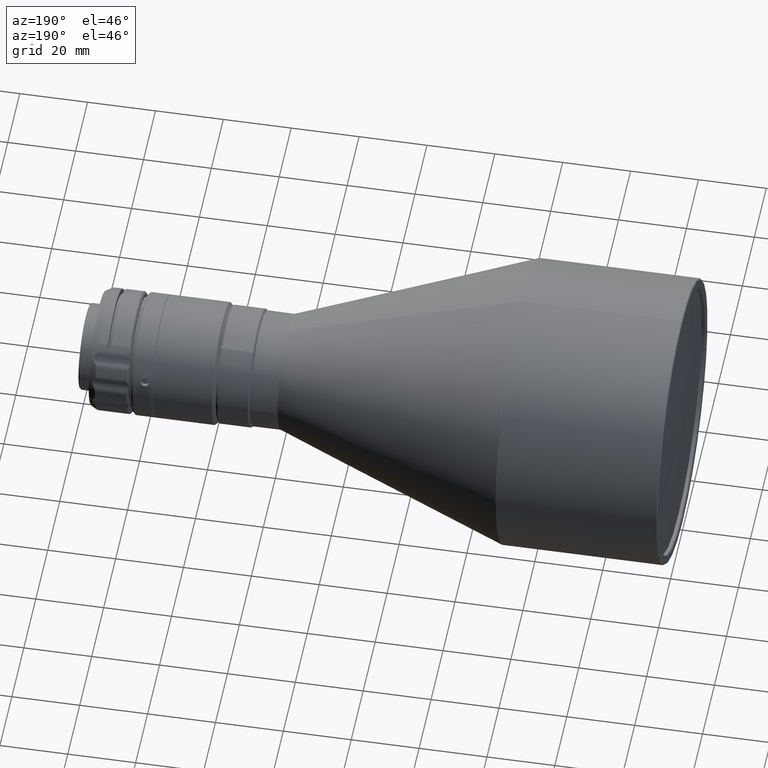
[diagram: clean part render]
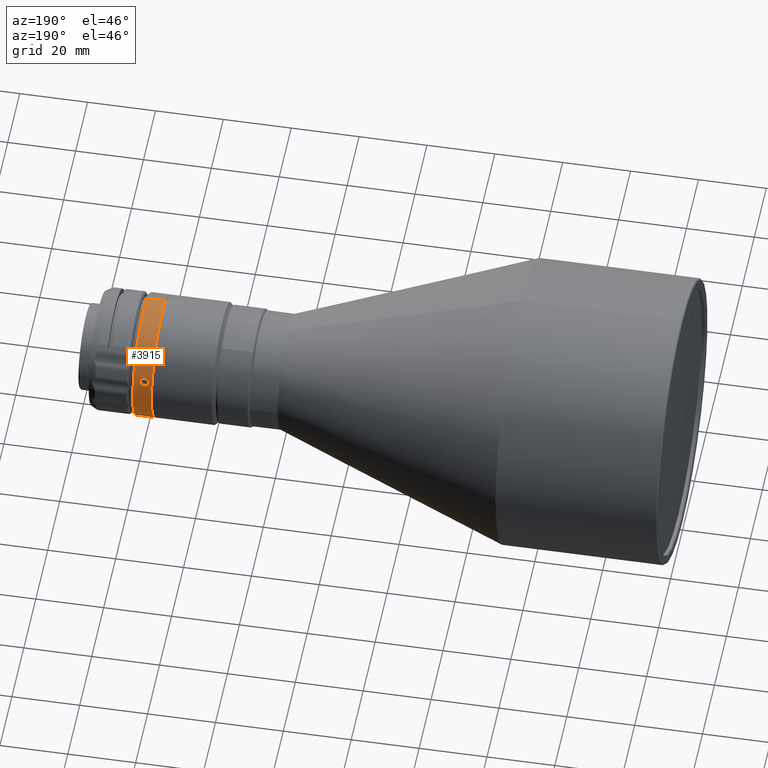
[diagram: same view with one face highlighted and labeled with its STEP entity id]
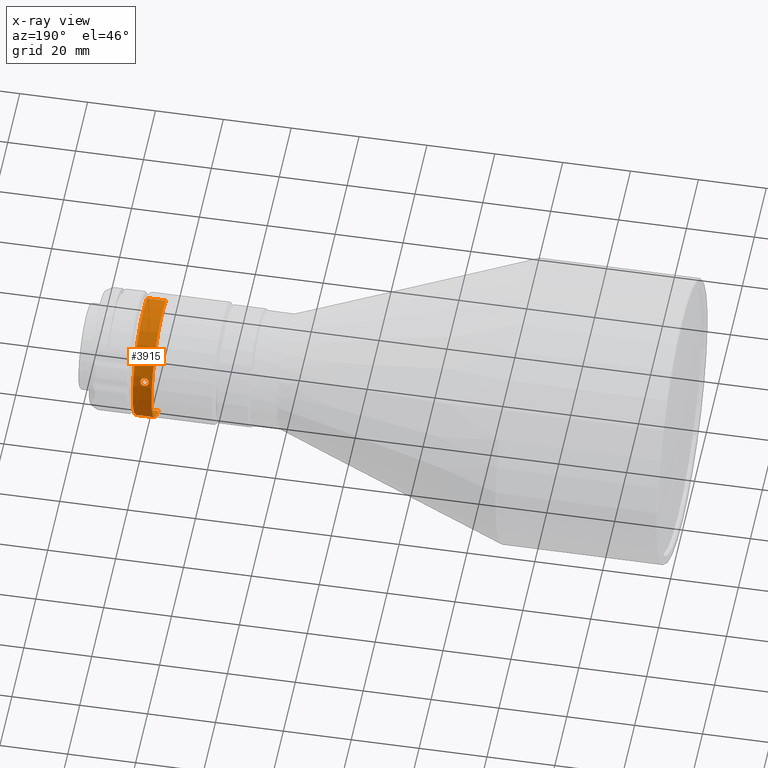
[diagram: x-ray of the same camera — body ghosted, the highlighted face saturated]
A machine part, auxiliary view. The second image highlights one B-rep face of the part: STEP entity #3915.
The next image is the same camera in x-ray: the body ghosted, the highlighted face saturated — about 0% of this face is hidden behind the body in this view.
In plain terms, the highlighted cylindrical surface (partial cylindrical patch) has radius 18 mm, axis along (1, -0, 0).
Its self-contained STEP definition (entity closure, byte-faithful):
#33 = CARTESIAN_POINT ( 'NONE',  ( 153.3200000000000500, 0.0000000000000000000, 0.0000000000000000000 ) ) ;
#83 = EDGE_CURVE ( 'NONE', #1012, #4219, #247, .T. ) ;
#118 = AXIS2_PLACEMENT_3D ( 'NONE', #2784, #1117, #1835 ) ;
#149 = CARTESIAN_POINT ( 'NONE',  ( 156.6126764130156300, 17.19872891739681400, 5.312875864783946700 ) ) ;
#166 = CARTESIAN_POINT ( 'NONE',  ( 156.7701125228576300, 17.05531151229267200, 5.756990789659949000 ) ) ;
#179 = LINE ( 'NONE', #4344, #1465 ) ;
#209 = CARTESIAN_POINT ( 'NONE',  ( 154.7520794296895000, 16.64779505477713800, 6.845771254206045600 ) ) ;
#236 = CARTESIAN_POINT ( 'NONE',  ( 154.3029849577538400, 17.10764951396787500, 5.599192571320239500 ) ) ;
#247 = B_SPLINE_CURVE_WITH_KNOTS ( 'NONE', 3,
 ( #3617, #2587, #1964, #3961, #2292, #1265, #2640, #236, #1202, #2625, #3303, #2962, #4000, #209, #535, #1565, #1916, #1932 ),
 .UNSPECIFIED., .F., .F.,
 ( 4, 2, 2, 2, 2, 2, 2, 2, 4 ),
 ( 1.011074022885927400E-013, 0.0004885516651167364700, 0.0009771033301323656700, 0.001465654995147994700, 0.001954206660163623900, 0.002442758325179253100, 0.002931309990194881800, 0.003419861655210511000, 0.003908413320226140200 ),
 .UNSPECIFIED. ) ;
#312 = ORIENTED_EDGE ( 'NONE', *, *, #1543, .T. ) ;
#376 = LINE ( 'NONE', #1563, #1065 ) ;
#403 = EDGE_LOOP ( 'NONE', ( #623, #1054 ) ) ;
#404 = DIRECTION ( 'NONE',  ( 1.000000000000000000, -0.0000000000000000000, 0.0000000000000000000 ) ) ;
#432 = CIRCLE ( 'NONE', #118, 18.00000000000000000 ) ;
#465 = DIRECTION ( 'NONE',  ( 0.0000000000000000000, -0.3283447758131912100, 0.9445579432709172400 ) ) ;
#487 = CARTESIAN_POINT ( 'NONE',  ( 156.5210970272663400, 17.23865710162804600, 5.180961839587793900 ) ) ;
#499 = CARTESIAN_POINT ( 'NONE',  ( 155.6851993349185400, 17.37142796394070700, 4.715240237105522400 ) ) ;
#514 = CARTESIAN_POINT ( 'NONE',  ( 155.8472988360740600, 16.56346420944447900, 7.046673383073519800 ) ) ;
#535 = CARTESIAN_POINT ( 'NONE',  ( 154.8895737253813000, 16.61237247428229600, 6.930587481705518200 ) ) ;
#546 = CARTESIAN_POINT ( 'NONE',  ( 156.7698868788436100, 16.94820650319242700, 6.065054827346450800 ) ) ;
#623 = ORIENTED_EDGE ( 'NONE', *, *, #3170, .F. ) ;
#759 = EDGE_CURVE ( 'NONE', #4055, #1776, #179, .T. ) ;
#789 = ORIENTED_EDGE ( 'NONE', *, *, #759, .F. ) ;
#885 = ORIENTED_EDGE ( 'NONE', *, *, #1281, .F. ) ;
#1012 = VERTEX_POINT ( 'NONE', #1335 ) ;
#1054 = ORIENTED_EDGE ( 'NONE', *, *, #83, .F. ) ;
#1065 = VECTOR ( 'NONE', #1647, 1000.000000000000000 ) ;
#1117 = DIRECTION ( 'NONE',  ( 1.000000000000000000, -0.0000000000000000000, 0.0000000000000000000 ) ) ;
#1158 = ORIENTED_EDGE ( 'NONE', *, *, #3246, .T. ) ;
#1170 = CYLINDRICAL_SURFACE ( 'NONE', #2127, 18.00000000000000000 ) ;
#1202 = CARTESIAN_POINT ( 'NONE',  ( 154.2701131211501300, 17.05586461434409200, 5.755351943255903700 ) ) ;
#1214 = CARTESIAN_POINT ( 'NONE',  ( 155.8476252027734600, 17.36293998511534700, 4.746817580142423100 ) ) ;
#1224 = CARTESIAN_POINT ( 'NONE',  ( 158.8200000000000200, 5.910205964637441400, -17.00204297887651400 ) ) ;
#1252 = DIRECTION ( 'NONE',  ( 1.000000000000000000, -0.0000000000000000000, 0.0000000000000000000 ) ) ;
#1265 = CARTESIAN_POINT ( 'NONE',  ( 154.5208309255678800, 17.23924983364542700, 5.178956000935471600 ) ) ;
#1266 = VERTEX_POINT ( 'NONE', #4168 ) ;
#1281 = EDGE_CURVE ( 'NONE', #1776, #1266, #1577, .T. ) ;
#1335 = CARTESIAN_POINT ( 'NONE',  ( 155.5200000000000100, 17.37142796394426400, 4.715240237092411100 ) ) ;
#1465 = VECTOR ( 'NONE', #1252, 1000.000000000000000 ) ;
#1543 = EDGE_CURVE ( 'NONE', #4055, #2276, #432, .T. ) ;
#1563 = CARTESIAN_POINT ( 'NONE',  ( 153.3200000000000500, -5.910205964637442300, 17.00204297887651000 ) ) ;
#1565 = CARTESIAN_POINT ( 'NONE',  ( 155.1923747973138700, 16.56349506493784000, 7.046601542562571700 ) ) ;
#1577 = CIRCLE ( 'NONE', #3223, 18.00000000000000000 ) ;
#1647 = DIRECTION ( 'NONE',  ( 1.000000000000000000, -0.0000000000000000000, 0.0000000000000000000 ) ) ;
#1776 = VERTEX_POINT ( 'NONE', #1224 ) ;
#1835 = DIRECTION ( 'NONE',  ( -1.541976423090495200E-015, -0.3283447758131912100, 0.9445579432709172400 ) ) ;
#1916 = CARTESIAN_POINT ( 'NONE',  ( 155.3548010475257700, 16.55056602440476300, 7.076635095284964400 ) ) ;
#1932 = CARTESIAN_POINT ( 'NONE',  ( 155.5200000000000100, 16.55056602441128900, 7.076635095269704600 ) ) ;
#1964 = CARTESIAN_POINT ( 'NONE',  ( 155.1927011639196800, 17.36296034403517300, 4.746742090816312900 ) ) ;
#2000 = CARTESIAN_POINT ( 'NONE',  ( 155.5200000000000100, 16.55056602441128900, 7.076635095269704600 ) ) ;
#2127 = AXIS2_PLACEMENT_3D ( 'NONE', #33, #3460, #3439 ) ;
#2276 = VERTEX_POINT ( 'NONE', #3958 ) ;
#2292 = CARTESIAN_POINT ( 'NONE',  ( 154.7513692654260100, 17.30424272377522100, 4.957469499970889300 ) ) ;
#2550 = CARTESIAN_POINT ( 'NONE',  ( 156.1504262746951800, 17.32931706269763300, 4.868134366095855400 ) ) ;
#2587 = CARTESIAN_POINT ( 'NONE',  ( 155.3548008563927300, 17.37142796394782400, 4.715240237079299000 ) ) ;
#2596 = CARTESIAN_POINT ( 'NONE',  ( 155.5200000000000100, 16.55056602441128900, 7.076635095269704600 ) ) ;
#2625 = CARTESIAN_POINT ( 'NONE',  ( 154.2698874771487000, 16.94878920715530800, 6.063426271093763200 ) ) ;
#2640 = CARTESIAN_POINT ( 'NONE',  ( 154.4277045750736800, 17.19884114445912000, 5.312484600556783400 ) ) ;
#2752 = B_SPLINE_CURVE_WITH_KNOTS ( 'NONE', 3,
 ( #2596, #2899, #514, #4271, #3913, #3615, #3211, #3255, #546, #166, #2884, #149, #487, #3941, #2550, #1214, #499, #3268 ),
 .UNSPECIFIED., .F., .F.,
 ( 4, 2, 2, 2, 2, 2, 2, 2, 4 ),
 ( 0.003908413320226140200, 0.004396965550409417800, 0.004885517780592695300, 0.005374070010775973800, 0.005862622240959251300, 0.006351174471142528900, 0.006839726701325807300, 0.007328278931509084800, 0.007816831161692362400 ),
 .UNSPECIFIED. ) ;
#2784 = CARTESIAN_POINT ( 'NONE',  ( 153.3200000000000800, 0.0000000000000000000, 0.0000000000000000000 ) ) ;
#2884 = CARTESIAN_POINT ( 'NONE',  ( 156.7377851636835800, 17.10691854541127200, 5.601451973316284400 ) ) ;
#2899 = CARTESIAN_POINT ( 'NONE',  ( 155.6851991438307400, 16.55056602441781500, 7.076635095254443000 ) ) ;
#2962 = CARTESIAN_POINT ( 'NONE',  ( 154.4273235870183500, 16.78580667039252100, 6.500740015791434300 ) ) ;
#3051 = EDGE_LOOP ( 'NONE', ( #789, #312, #1158, #885 ) ) ;
#3170 = EDGE_CURVE ( 'NONE', #4219, #1012, #2752, .T. ) ;
#3211 = CARTESIAN_POINT ( 'NONE',  ( 156.6122954249105100, 16.78565200510646700, 6.501116527717085700 ) ) ;
#3223 = AXIS2_PLACEMENT_3D ( 'NONE', #3488, #404, #465 ) ;
#3246 = EDGE_CURVE ( 'NONE', #2276, #1266, #376, .T. ) ;
#3247 = FACE_BOUND ( 'NONE', #403, .T. ) ;
#3255 = CARTESIAN_POINT ( 'NONE',  ( 156.7370150422354700, 16.89196276927066600, 6.219664230894195200 ) ) ;
#3268 = CARTESIAN_POINT ( 'NONE',  ( 155.5200000000000100, 17.37142796394426400, 4.715240237092411100 ) ) ;
#3303 = CARTESIAN_POINT ( 'NONE',  ( 154.3022148363299400, 16.89279087745556000, 6.217438596340158200 ) ) ;
#3439 = DIRECTION ( 'NONE',  ( 0.0000000000000000000, -0.3283447758131912100, 0.9445579432709172400 ) ) ;
#3460 = DIRECTION ( 'NONE',  ( 1.000000000000000000, -0.0000000000000000000, 0.0000000000000000000 ) ) ;
#3488 = CARTESIAN_POINT ( 'NONE',  ( 158.8200000000000200, 0.0000000000000000000, 0.0000000000000000000 ) ) ;
#3615 = CARTESIAN_POINT ( 'NONE',  ( 156.5191690744164500, 16.73452245148304800, 6.630918368316584700 ) ) ;
#3617 = CARTESIAN_POINT ( 'NONE',  ( 155.5200000000000100, 17.37142796394426400, 4.715240237092411100 ) ) ;
#3873 = CARTESIAN_POINT ( 'NONE',  ( 153.3200000000000800, 5.910205964637445900, -17.00204297887653100 ) ) ;
#3913 = CARTESIAN_POINT ( 'NONE',  ( 156.2886307345588600, 16.64811759482167000, 6.844961697150490700 ) ) ;
#3915 = ADVANCED_FACE ( 'NONE', ( #3955, #3247 ), #1170, .T. ) ;
#3941 = CARTESIAN_POINT ( 'NONE',  ( 156.2879205703782500, 17.30449188312056200, 4.956634434552420900 ) ) ;
#3955 = FACE_OUTER_BOUND ( 'NONE', #3051, .T. ) ;
#3958 = CARTESIAN_POINT ( 'NONE',  ( 153.3200000000000800, -5.910205964637447600, 17.00204297887653100 ) ) ;
#3961 = CARTESIAN_POINT ( 'NONE',  ( 154.8899939582629500, 17.32937956681206500, 4.867910867571564100 ) ) ;
#4000 = CARTESIAN_POINT ( 'NONE',  ( 154.5189029727745500, 16.73530170894767700, 6.628977369192694100 ) ) ;
#4055 = VERTEX_POINT ( 'NONE', #3873 ) ;
#4168 = CARTESIAN_POINT ( 'NONE',  ( 158.8200000000000200, -5.910205964637442300, 17.00204297887651000 ) ) ;
#4219 = VERTEX_POINT ( 'NONE', #2000 ) ;
#4271 = CARTESIAN_POINT ( 'NONE',  ( 156.1500060417267300, 16.61228286927566300, 6.930801559447138200 ) ) ;
#4344 = CARTESIAN_POINT ( 'NONE',  ( 153.3200000000000500, 5.910205964637439600, -17.00204297887651000 ) ) ;